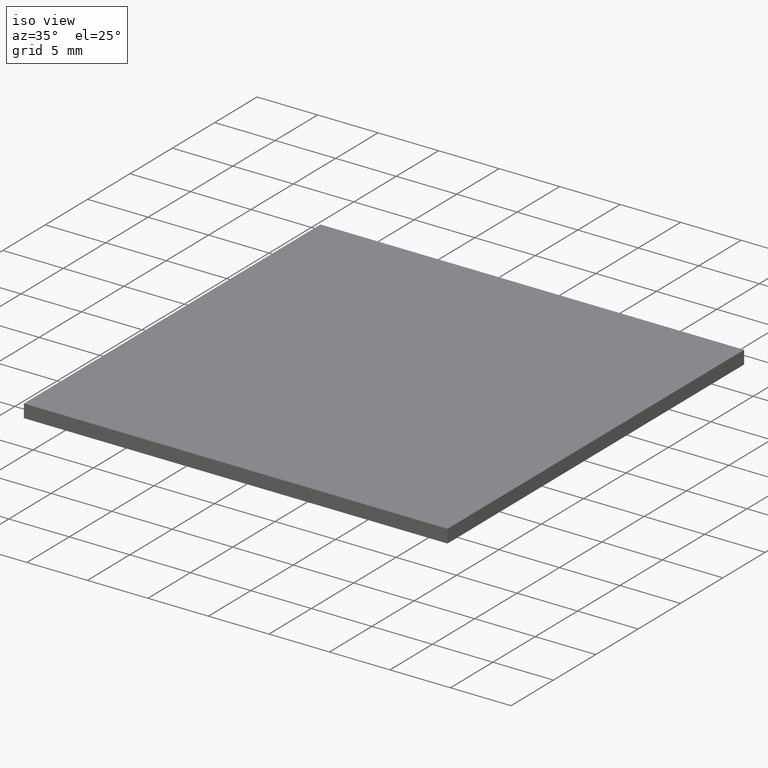
[diagram: clean part render]
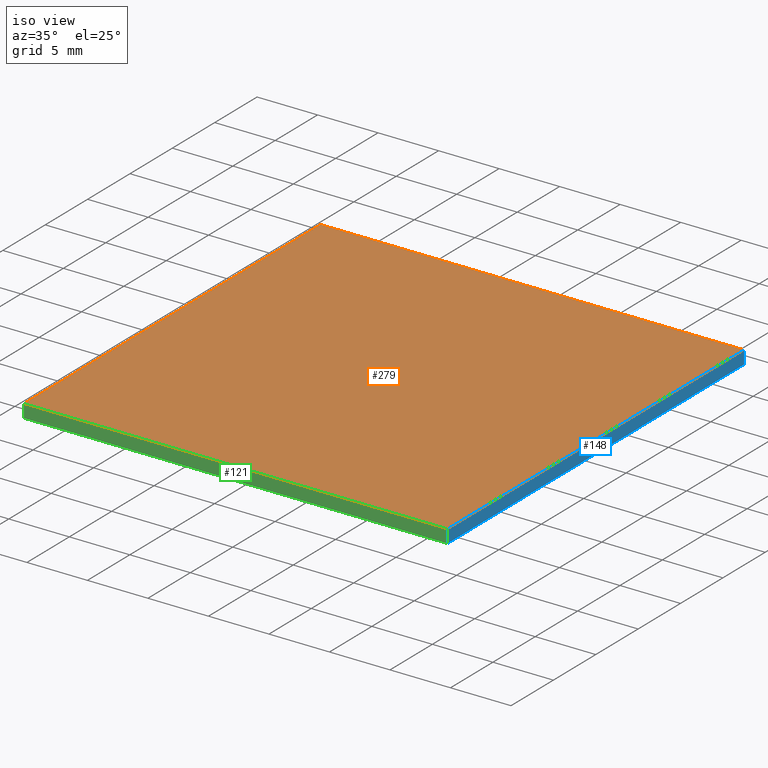
[diagram: same view with three faces highlighted in distinct colors, each labeled with its STEP entity id]
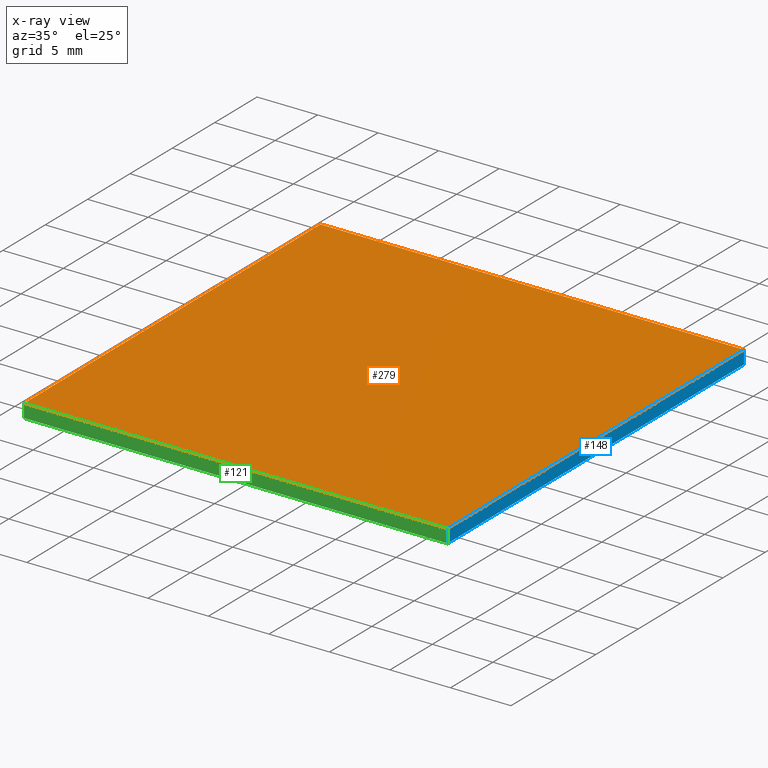
[diagram: x-ray of the same camera — body ghosted, the three highlighted faces saturated]
A machine part, iso view with three faces highlighted in distinct colors.
The next image is the same camera in x-ray (body ghosted, the three faces saturated) — at least one of them is partly hidden behind the body in this view.
Their STEP definitions:

[orange] entity #279 — the highlighted planar face has unit normal (0, 0, -1).
#8 = CARTESIAN_POINT ( 'NONE',  ( 0.0000000000000000000, 0.0000000000000000000, 1.100000000000000100 ) ) ;
#10 = LINE ( 'NONE', #204, #123 ) ;
#16 = EDGE_CURVE ( 'NONE', #33, #271, #87, .T. ) ;
#33 = VERTEX_POINT ( 'NONE', #247 ) ;
#39 = DIRECTION ( 'NONE',  ( 1.000000000000000000, 0.0000000000000000000, 0.0000000000000000000 ) ) ;
#48 = EDGE_CURVE ( 'NONE', #60, #33, #272, .T. ) ;
#58 = ORIENTED_EDGE ( 'NONE', *, *, #48, .T. ) ;
#60 = VERTEX_POINT ( 'NONE', #163 ) ;
#66 = CARTESIAN_POINT ( 'NONE',  ( -17.50000000000000000, -17.50000000000000000, 1.100000000000000100 ) ) ;
#73 = EDGE_CURVE ( 'NONE', #271, #216, #10, .T. ) ;
#74 = EDGE_CURVE ( 'NONE', #216, #60, #193, .T. ) ;
#87 = LINE ( 'NONE', #232, #215 ) ;
#114 = ORIENTED_EDGE ( 'NONE', *, *, #16, .T. ) ;
#117 = DIRECTION ( 'NONE',  ( -1.000000000000000000, -0.0000000000000000000, -0.0000000000000000000 ) ) ;
#123 = VECTOR ( 'NONE', #117, 1000.000000000000000 ) ;
#124 = CARTESIAN_POINT ( 'NONE',  ( 17.50000000000000000, 17.50000000000000000, 1.100000000000000100 ) ) ;
#156 = VECTOR ( 'NONE', #39, 1000.000000000000000 ) ;
#159 = ORIENTED_EDGE ( 'NONE', *, *, #73, .T. ) ;
#163 = CARTESIAN_POINT ( 'NONE',  ( -17.50000000000000000, -17.50000000000000000, 1.100000000000000100 ) ) ;
#167 = CARTESIAN_POINT ( 'NONE',  ( -17.50000000000000000, 17.50000000000000000, 1.100000000000000100 ) ) ;
#193 = LINE ( 'NONE', #225, #223 ) ;
#199 = FACE_OUTER_BOUND ( 'NONE', #218, .T. ) ;
#204 = CARTESIAN_POINT ( 'NONE',  ( -17.50000000000000000, 17.50000000000000000, 1.100000000000000100 ) ) ;
#207 = PLANE ( 'NONE',  #295 ) ;
#215 = VECTOR ( 'NONE', #303, 1000.000000000000000 ) ;
#216 = VERTEX_POINT ( 'NONE', #167 ) ;
#218 = EDGE_LOOP ( 'NONE', ( #114, #159, #267, #58 ) ) ;
#223 = VECTOR ( 'NONE', #253, 1000.000000000000000 ) ;
#225 = CARTESIAN_POINT ( 'NONE',  ( -17.50000000000000000, -17.50000000000000000, 1.100000000000000100 ) ) ;
#232 = CARTESIAN_POINT ( 'NONE',  ( 17.50000000000000000, -17.50000000000000000, 1.100000000000000100 ) ) ;
#247 = CARTESIAN_POINT ( 'NONE',  ( 17.50000000000000000, -17.50000000000000000, 1.100000000000000100 ) ) ;
#253 = DIRECTION ( 'NONE',  ( -0.0000000000000000000, -1.000000000000000000, -0.0000000000000000000 ) ) ;
#267 = ORIENTED_EDGE ( 'NONE', *, *, #74, .T. ) ;
#271 = VERTEX_POINT ( 'NONE', #124 ) ;
#272 = LINE ( 'NONE', #66, #156 ) ;
#275 = DIRECTION ( 'NONE',  ( 0.0000000000000000000, 0.0000000000000000000, -1.000000000000000000 ) ) ;
#276 = DIRECTION ( 'NONE',  ( -1.000000000000000000, 0.0000000000000000000, -0.0000000000000000000 ) ) ;
#279 = ADVANCED_FACE ( 'NONE', ( #199 ), #207, .F. ) ;
#295 = AXIS2_PLACEMENT_3D ( 'NONE', #8, #275, #276 ) ;
#303 = DIRECTION ( 'NONE',  ( 0.0000000000000000000, 1.000000000000000000, 0.0000000000000000000 ) ) ;

[blue] entity #148 — the highlighted planar face has unit normal (-1, 0, 0).
#3 = ORIENTED_EDGE ( 'NONE', *, *, #198, .F. ) ;
#5 = EDGE_LOOP ( 'NONE', ( #65, #3, #80, #45 ) ) ;
#16 = EDGE_CURVE ( 'NONE', #33, #271, #87, .T. ) ;
#23 = FACE_OUTER_BOUND ( 'NONE', #5, .T. ) ;
#32 = VECTOR ( 'NONE', #77, 1000.000000000000000 ) ;
#33 = VERTEX_POINT ( 'NONE', #247 ) ;
#34 = DIRECTION ( 'NONE',  ( -1.000000000000000000, 0.0000000000000000000, 0.0000000000000000000 ) ) ;
#37 = CARTESIAN_POINT ( 'NONE',  ( 17.50000000000000000, -17.50000000000000000, 0.0000000000000000000 ) ) ;
#45 = ORIENTED_EDGE ( 'NONE', *, *, #182, .T. ) ;
#63 = DIRECTION ( 'NONE',  ( 0.0000000000000000000, 0.0000000000000000000, 1.000000000000000000 ) ) ;
#65 = ORIENTED_EDGE ( 'NONE', *, *, #310, .T. ) ;
#77 = DIRECTION ( 'NONE',  ( 0.0000000000000000000, 1.000000000000000000, 0.0000000000000000000 ) ) ;
#80 = ORIENTED_EDGE ( 'NONE', *, *, #16, .F. ) ;
#87 = LINE ( 'NONE', #232, #215 ) ;
#90 = CARTESIAN_POINT ( 'NONE',  ( 17.50000000000000000, -17.50000000000000000, 1.100000000000000100 ) ) ;
#122 = DIRECTION ( 'NONE',  ( -0.0000000000000000000, -0.0000000000000000000, -1.000000000000000000 ) ) ;
#124 = CARTESIAN_POINT ( 'NONE',  ( 17.50000000000000000, 17.50000000000000000, 1.100000000000000100 ) ) ;
#132 = VECTOR ( 'NONE', #281, 1000.000000000000000 ) ;
#140 = AXIS2_PLACEMENT_3D ( 'NONE', #90, #34, #63 ) ;
#148 = ADVANCED_FACE ( 'NONE', ( #23 ), #227, .F. ) ;
#164 = CARTESIAN_POINT ( 'NONE',  ( 17.50000000000000000, 17.50000000000000000, 0.0000000000000000000 ) ) ;
#182 = EDGE_CURVE ( 'NONE', #33, #289, #269, .T. ) ;
#187 = CARTESIAN_POINT ( 'NONE',  ( 17.50000000000000000, -17.50000000000000000, 1.100000000000000100 ) ) ;
#190 = CARTESIAN_POINT ( 'NONE',  ( 17.50000000000000000, -17.50000000000000000, 0.0000000000000000000 ) ) ;
#191 = VECTOR ( 'NONE', #122, 1000.000000000000000 ) ;
#198 = EDGE_CURVE ( 'NONE', #271, #202, #266, .T. ) ;
#202 = VERTEX_POINT ( 'NONE', #164 ) ;
#215 = VECTOR ( 'NONE', #303, 1000.000000000000000 ) ;
#227 = PLANE ( 'NONE',  #140 ) ;
#232 = CARTESIAN_POINT ( 'NONE',  ( 17.50000000000000000, -17.50000000000000000, 1.100000000000000100 ) ) ;
#247 = CARTESIAN_POINT ( 'NONE',  ( 17.50000000000000000, -17.50000000000000000, 1.100000000000000100 ) ) ;
#250 = CARTESIAN_POINT ( 'NONE',  ( 17.50000000000000000, 17.50000000000000000, 1.100000000000000100 ) ) ;
#257 = LINE ( 'NONE', #190, #32 ) ;
#266 = LINE ( 'NONE', #250, #191 ) ;
#269 = LINE ( 'NONE', #187, #132 ) ;
#271 = VERTEX_POINT ( 'NONE', #124 ) ;
#281 = DIRECTION ( 'NONE',  ( -0.0000000000000000000, -0.0000000000000000000, -1.000000000000000000 ) ) ;
#289 = VERTEX_POINT ( 'NONE', #37 ) ;
#303 = DIRECTION ( 'NONE',  ( 0.0000000000000000000, 1.000000000000000000, 0.0000000000000000000 ) ) ;
#310 = EDGE_CURVE ( 'NONE', #289, #202, #257, .T. ) ;

[green] entity #121 — the highlighted planar face has unit normal (0, 1, 0).
#7 = ORIENTED_EDGE ( 'NONE', *, *, #24, .T. ) ;
#20 = LINE ( 'NONE', #57, #249 ) ;
#24 = EDGE_CURVE ( 'NONE', #292, #289, #20, .T. ) ;
#31 = ORIENTED_EDGE ( 'NONE', *, *, #182, .F. ) ;
#33 = VERTEX_POINT ( 'NONE', #247 ) ;
#36 = CARTESIAN_POINT ( 'NONE',  ( -17.50000000000000000, -17.50000000000000000, 0.0000000000000000000 ) ) ;
#37 = CARTESIAN_POINT ( 'NONE',  ( 17.50000000000000000, -17.50000000000000000, 0.0000000000000000000 ) ) ;
#39 = DIRECTION ( 'NONE',  ( 1.000000000000000000, 0.0000000000000000000, 0.0000000000000000000 ) ) ;
#48 = EDGE_CURVE ( 'NONE', #60, #33, #272, .T. ) ;
#57 = CARTESIAN_POINT ( 'NONE',  ( -17.50000000000000000, -17.50000000000000000, 0.0000000000000000000 ) ) ;
#60 = VERTEX_POINT ( 'NONE', #163 ) ;
#62 = DIRECTION ( 'NONE',  ( 0.0000000000000000000, 1.000000000000000000, 0.0000000000000000000 ) ) ;
#66 = CARTESIAN_POINT ( 'NONE',  ( -17.50000000000000000, -17.50000000000000000, 1.100000000000000100 ) ) ;
#67 = PLANE ( 'NONE',  #89 ) ;
#89 = AXIS2_PLACEMENT_3D ( 'NONE', #119, #62, #118 ) ;
#93 = LINE ( 'NONE', #230, #296 ) ;
#118 = DIRECTION ( 'NONE',  ( 0.0000000000000000000, -0.0000000000000000000, 1.000000000000000000 ) ) ;
#119 = CARTESIAN_POINT ( 'NONE',  ( -17.50000000000000000, -17.50000000000000000, 1.100000000000000100 ) ) ;
#121 = ADVANCED_FACE ( 'NONE', ( #233 ), #67, .F. ) ;
#132 = VECTOR ( 'NONE', #281, 1000.000000000000000 ) ;
#139 = EDGE_LOOP ( 'NONE', ( #7, #31, #188, #315 ) ) ;
#156 = VECTOR ( 'NONE', #39, 1000.000000000000000 ) ;
#163 = CARTESIAN_POINT ( 'NONE',  ( -17.50000000000000000, -17.50000000000000000, 1.100000000000000100 ) ) ;
#182 = EDGE_CURVE ( 'NONE', #33, #289, #269, .T. ) ;
#187 = CARTESIAN_POINT ( 'NONE',  ( 17.50000000000000000, -17.50000000000000000, 1.100000000000000100 ) ) ;
#188 = ORIENTED_EDGE ( 'NONE', *, *, #48, .F. ) ;
#222 = DIRECTION ( 'NONE',  ( 1.000000000000000000, 0.0000000000000000000, 0.0000000000000000000 ) ) ;
#230 = CARTESIAN_POINT ( 'NONE',  ( -17.50000000000000000, -17.50000000000000000, 1.100000000000000100 ) ) ;
#233 = FACE_OUTER_BOUND ( 'NONE', #139, .T. ) ;
#247 = CARTESIAN_POINT ( 'NONE',  ( 17.50000000000000000, -17.50000000000000000, 1.100000000000000100 ) ) ;
#249 = VECTOR ( 'NONE', #222, 1000.000000000000000 ) ;
#259 = EDGE_CURVE ( 'NONE', #60, #292, #93, .T. ) ;
#269 = LINE ( 'NONE', #187, #132 ) ;
#272 = LINE ( 'NONE', #66, #156 ) ;
#273 = DIRECTION ( 'NONE',  ( -0.0000000000000000000, -0.0000000000000000000, -1.000000000000000000 ) ) ;
#281 = DIRECTION ( 'NONE',  ( -0.0000000000000000000, -0.0000000000000000000, -1.000000000000000000 ) ) ;
#289 = VERTEX_POINT ( 'NONE', #37 ) ;
#292 = VERTEX_POINT ( 'NONE', #36 ) ;
#296 = VECTOR ( 'NONE', #273, 1000.000000000000000 ) ;
#315 = ORIENTED_EDGE ( 'NONE', *, *, #259, .T. ) ;